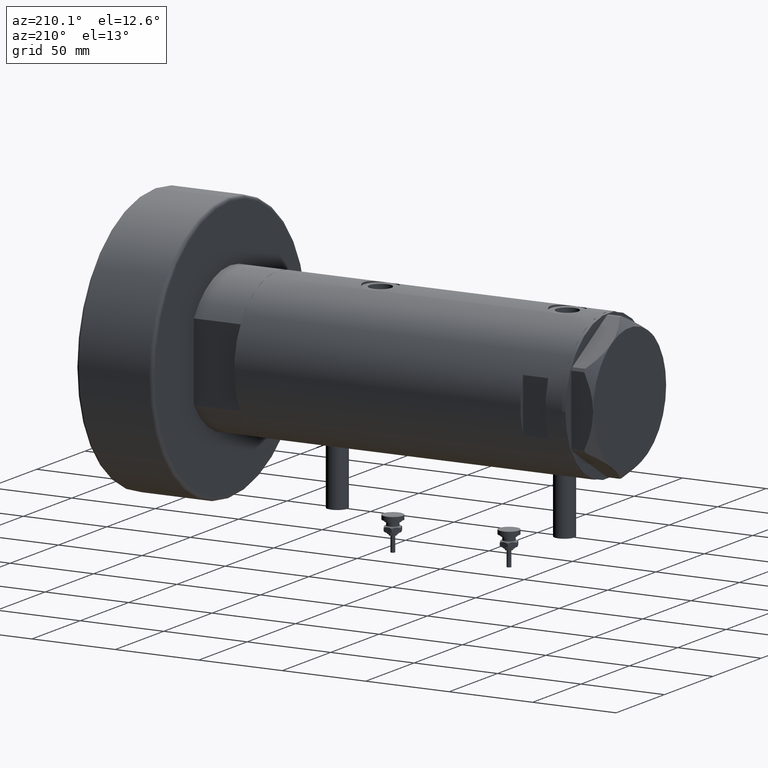
[diagram: clean part render]
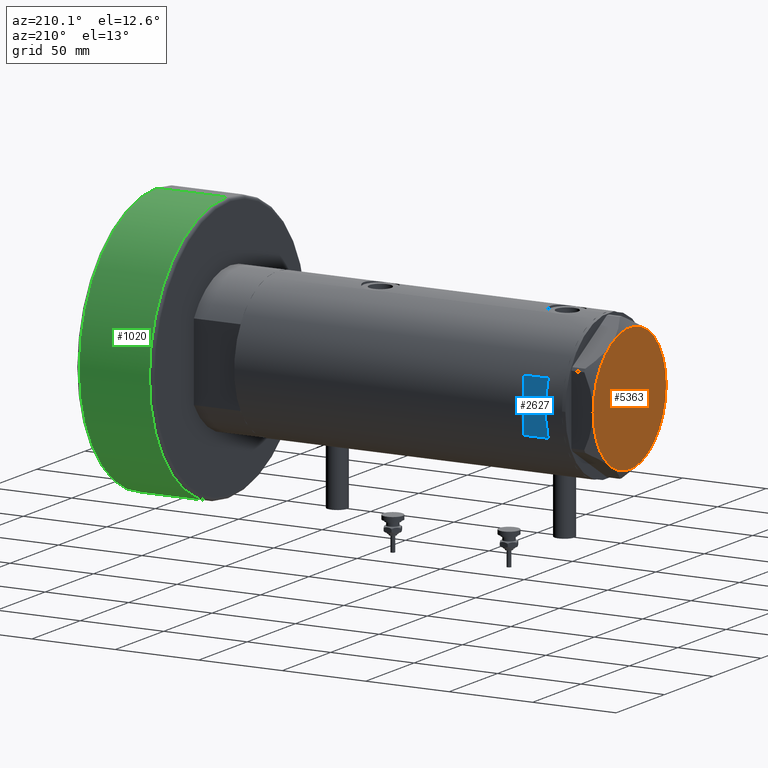
[diagram: same view with three faces highlighted in distinct colors, each labeled with its STEP entity id]
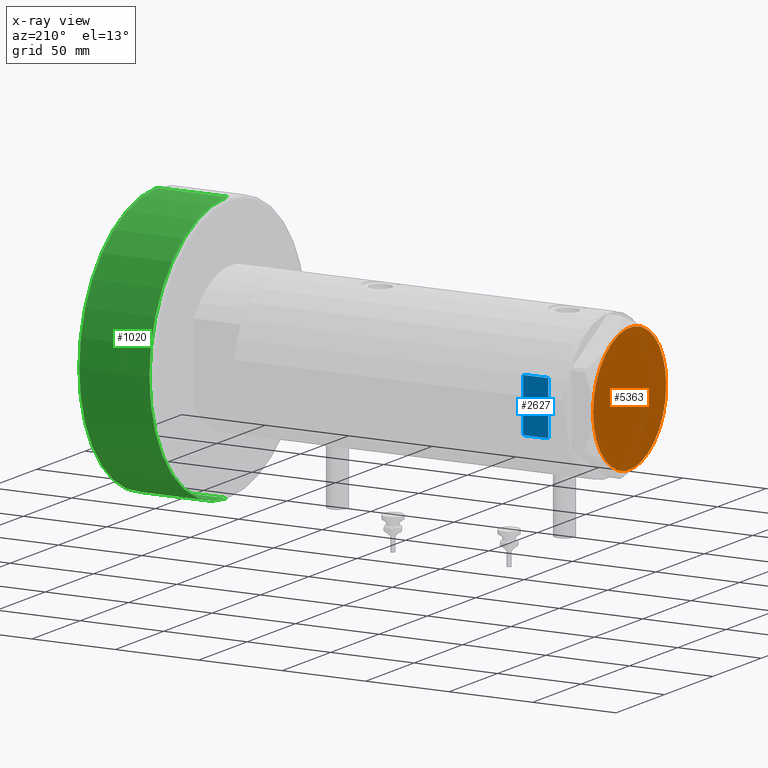
[diagram: x-ray of the same camera — body ghosted, the three highlighted faces saturated]
A machine part, auxiliary view with three faces highlighted in distinct colors.
The next image is the same camera in x-ray (body ghosted, the three faces saturated) — at least one of them is partly hidden behind the body in this view.
Their STEP definitions:

[orange] entity #5363 — the highlighted planar face has unit normal (-1, -0, 0).
#29 = CARTESIAN_POINT ( 'NONE',  ( -37.75000000000000000, -1.201851678989727067E-14, 13.00000000000000000 ) ) ;
#89 = CARTESIAN_POINT ( 'NONE',  ( -18.87499999999999645, -32.69245899286255508, 13.00000000000000000 ) ) ;
#195 = ORIENTED_EDGE ( 'NONE', *, *, #2497, .T. ) ;
#367 = DIRECTION ( 'NONE',  ( 0.000000000000000000, 0.000000000000000000, 1.000000000000000000 ) ) ;
#472 = DIRECTION ( 'NONE',  ( 1.000000000000000000, 0.000000000000000000, 0.000000000000000000 ) ) ;
#511 = CIRCLE ( 'NONE', #1346, 37.75000000000000000 ) ;
#567 = CARTESIAN_POINT ( 'NONE',  ( 0.000000000000000000, 0.000000000000000000, 13.00000000000000000 ) ) ;
#642 = CARTESIAN_POINT ( 'NONE',  ( 0.000000000000000000, 0.000000000000000000, 13.00000000000000000 ) ) ;
#648 = VERTEX_POINT ( 'NONE', #934 ) ;
#934 = CARTESIAN_POINT ( 'NONE',  ( -18.87499999999999645, 32.69245899286256218, 13.00000000000000000 ) ) ;
#958 = DIRECTION ( 'NONE',  ( 0.000000000000000000, 0.000000000000000000, 1.000000000000000000 ) ) ;
#979 = CARTESIAN_POINT ( 'NONE',  ( 0.000000000000000000, 0.000000000000000000, 13.00000000000000000 ) ) ;
#1004 = ORIENTED_EDGE ( 'NONE', *, *, #3896, .T. ) ;
#1027 = CIRCLE ( 'NONE', #4939, 37.75000000000000000 ) ;
#1046 = CARTESIAN_POINT ( 'NONE',  ( 0.000000000000000000, 0.000000000000000000, 13.00000000000000000 ) ) ;
#1097 = CARTESIAN_POINT ( 'NONE',  ( 0.000000000000000000, 0.000000000000000000, 13.00000000000000000 ) ) ;
#1195 = DIRECTION ( 'NONE',  ( 1.000000000000000000, 0.000000000000000000, 0.000000000000000000 ) ) ;
#1201 = VERTEX_POINT ( 'NONE', #29 ) ;
#1346 = AXIS2_PLACEMENT_3D ( 'NONE', #642, #3654, #4218 ) ;
#1358 = AXIS2_PLACEMENT_3D ( 'NONE', #2964, #3960, #5392 ) ;
#1396 = DIRECTION ( 'NONE',  ( 0.000000000000000000, 0.000000000000000000, 1.000000000000000000 ) ) ;
#1484 = CARTESIAN_POINT ( 'NONE',  ( 18.87499999999998579, -32.69245899286256218, 13.00000000000000000 ) ) ;
#1555 = AXIS2_PLACEMENT_3D ( 'NONE', #1046, #6120, #1195 ) ;
#1834 = DIRECTION ( 'NONE',  ( 0.000000000000000000, 0.000000000000000000, 1.000000000000000000 ) ) ;
#2497 = EDGE_CURVE ( 'NONE', #6016, #5858, #2800, .T. ) ;
#2581 = VERTEX_POINT ( 'NONE', #89 ) ;
#2608 = EDGE_CURVE ( 'NONE', #648, #1201, #1027, .T. ) ;
#2686 = AXIS2_PLACEMENT_3D ( 'NONE', #6239, #1834, #6142 ) ;
#2800 = CIRCLE ( 'NONE', #2686, 37.75000000000000000 ) ;
#2921 = FACE_OUTER_BOUND ( 'NONE', #5645, .T. ) ;
#2964 = CARTESIAN_POINT ( 'NONE',  ( 0.000000000000000000, 0.000000000000000000, 13.00000000000000000 ) ) ;
#3012 = EDGE_CURVE ( 'NONE', #1201, #2581, #4622, .T. ) ;
#3138 = CARTESIAN_POINT ( 'NONE',  ( 18.87500000000000000, 32.69245899286255508, 13.00000000000000000 ) ) ;
#3377 = DIRECTION ( 'NONE',  ( 1.000000000000000000, 0.000000000000000000, -0.000000000000000000 ) ) ;
#3620 = CIRCLE ( 'NONE', #1555, 37.75000000000000000 ) ;
#3654 = DIRECTION ( 'NONE',  ( 0.000000000000000000, 0.000000000000000000, 1.000000000000000000 ) ) ;
#3667 = ORIENTED_EDGE ( 'NONE', *, *, #3786, .T. ) ;
#3786 = EDGE_CURVE ( 'NONE', #2581, #4156, #511, .T. ) ;
#3817 = AXIS2_PLACEMENT_3D ( 'NONE', #567, #958, #472 ) ;
#3835 = CIRCLE ( 'NONE', #1358, 37.75000000000000000 ) ;
#3864 = CARTESIAN_POINT ( 'NONE',  ( 37.75000000000000711, 1.802777518484591547E-14, 13.00000000000000000 ) ) ;
#3896 = EDGE_CURVE ( 'NONE', #4156, #6016, #3620, .T. ) ;
#3960 = DIRECTION ( 'NONE',  ( 0.000000000000000000, 0.000000000000000000, 1.000000000000000000 ) ) ;
#4007 = DIRECTION ( 'NONE',  ( 1.000000000000000000, 0.000000000000000000, 0.000000000000000000 ) ) ;
#4156 = VERTEX_POINT ( 'NONE', #1484 ) ;
#4218 = DIRECTION ( 'NONE',  ( 1.000000000000000000, 0.000000000000000000, 0.000000000000000000 ) ) ;
#4494 = EDGE_CURVE ( 'NONE', #5858, #648, #3835, .T. ) ;
#4536 = PLANE ( 'NONE',  #5568 ) ;
#4622 = CIRCLE ( 'NONE', #3817, 37.75000000000000000 ) ;
#4939 = AXIS2_PLACEMENT_3D ( 'NONE', #979, #367, #4007 ) ;
#4944 = ORIENTED_EDGE ( 'NONE', *, *, #4494, .T. ) ;
#5363 = ADVANCED_FACE ( 'NONE', ( #2921 ), #4536, .T. ) ;
#5392 = DIRECTION ( 'NONE',  ( 1.000000000000000000, 0.000000000000000000, 0.000000000000000000 ) ) ;
#5465 = ORIENTED_EDGE ( 'NONE', *, *, #3012, .T. ) ;
#5568 = AXIS2_PLACEMENT_3D ( 'NONE', #1097, #1396, #3377 ) ;
#5645 = EDGE_LOOP ( 'NONE', ( #1004, #195, #4944, #5978, #5465, #3667 ) ) ;
#5858 = VERTEX_POINT ( 'NONE', #3138 ) ;
#5978 = ORIENTED_EDGE ( 'NONE', *, *, #2608, .T. ) ;
#6016 = VERTEX_POINT ( 'NONE', #3864 ) ;
#6120 = DIRECTION ( 'NONE',  ( 0.000000000000000000, 0.000000000000000000, 1.000000000000000000 ) ) ;
#6142 = DIRECTION ( 'NONE',  ( 1.000000000000000000, 0.000000000000000000, 0.000000000000000000 ) ) ;
#6239 = CARTESIAN_POINT ( 'NONE',  ( 0.000000000000000000, 0.000000000000000000, 13.00000000000000000 ) ) ;

[blue] entity #2627 — the highlighted planar face has unit normal (0, -1, -0).
#229 = VERTEX_POINT ( 'NONE', #5573 ) ;
#244 = LINE ( 'NONE', #3176, #1656 ) ;
#253 = VERTEX_POINT ( 'NONE', #4857 ) ;
#420 = VERTEX_POINT ( 'NONE', #5204 ) ;
#685 = EDGE_CURVE ( 'NONE', #229, #420, #2871, .T. ) ;
#1471 = EDGE_CURVE ( 'NONE', #2346, #253, #3215, .T. ) ;
#1562 = DIRECTION ( 'NONE',  ( 0.000000000000000000, -1.000000000000000000, -0.000000000000000000 ) ) ;
#1571 = VECTOR ( 'NONE', #6303, 1000.000000000000000 ) ;
#1656 = VECTOR ( 'NONE', #4694, 1000.000000000000000 ) ;
#1808 = LINE ( 'NONE', #2327, #1571 ) ;
#1853 = ORIENTED_EDGE ( 'NONE', *, *, #3767, .T. ) ;
#1862 = VECTOR ( 'NONE', #2602, 1000.000000000000000 ) ;
#1877 = ORIENTED_EDGE ( 'NONE', *, *, #1471, .T. ) ;
#2076 = CARTESIAN_POINT ( 'NONE',  ( 15.96871942267132027, 40.99999999999999289, -98.20000000000000284 ) ) ;
#2327 = CARTESIAN_POINT ( 'NONE',  ( -44.00000000000000000, 40.99999999999999289, 73.20000000000000284 ) ) ;
#2346 = VERTEX_POINT ( 'NONE', #5044 ) ;
#2602 = DIRECTION ( 'NONE',  ( -0.000000000000000000, -0.000000000000000000, -1.000000000000000000 ) ) ;
#2627 = ADVANCED_FACE ( 'NONE', ( #3916 ), #5874, .F. ) ;
#2871 = LINE ( 'NONE', #5300, #5536 ) ;
#3102 = ORIENTED_EDGE ( 'NONE', *, *, #685, .T. ) ;
#3176 = CARTESIAN_POINT ( 'NONE',  ( -44.00000000000000000, 40.99999999999999289, 88.20000000000000284 ) ) ;
#3215 = LINE ( 'NONE', #2076, #1862 ) ;
#3511 = CARTESIAN_POINT ( 'NONE',  ( -44.00000000000000000, 40.99999999999999289, 88.20000000000000284 ) ) ;
#3622 = AXIS2_PLACEMENT_3D ( 'NONE', #3511, #1562, #5453 ) ;
#3767 = EDGE_CURVE ( 'NONE', #420, #2346, #244, .T. ) ;
#3916 = FACE_OUTER_BOUND ( 'NONE', #4073, .T. ) ;
#4073 = EDGE_LOOP ( 'NONE', ( #1877, #5863, #3102, #1853 ) ) ;
#4245 = DIRECTION ( 'NONE',  ( 0.000000000000000000, 0.000000000000000000, 1.000000000000000000 ) ) ;
#4694 = DIRECTION ( 'NONE',  ( 1.000000000000000000, -0.000000000000000000, -0.000000000000000000 ) ) ;
#4857 = CARTESIAN_POINT ( 'NONE',  ( 15.96871942267132027, 40.99999999999999289, 73.20000000000000284 ) ) ;
#5044 = CARTESIAN_POINT ( 'NONE',  ( 15.96871942267132027, 40.99999999999999289, 88.20000000000000284 ) ) ;
#5204 = CARTESIAN_POINT ( 'NONE',  ( -15.96871942267132027, 40.99999999999999289, 88.20000000000000284 ) ) ;
#5300 = CARTESIAN_POINT ( 'NONE',  ( -15.96871942267132027, 40.99999999999999289, -98.20000000000000284 ) ) ;
#5453 = DIRECTION ( 'NONE',  ( 0.000000000000000000, 0.000000000000000000, -1.000000000000000000 ) ) ;
#5536 = VECTOR ( 'NONE', #4245, 1000.000000000000000 ) ;
#5573 = CARTESIAN_POINT ( 'NONE',  ( -15.96871942267132027, 40.99999999999999289, 73.20000000000000284 ) ) ;
#5583 = EDGE_CURVE ( 'NONE', #229, #253, #1808, .T. ) ;
#5863 = ORIENTED_EDGE ( 'NONE', *, *, #5583, .F. ) ;
#5874 = PLANE ( 'NONE',  #3622 ) ;
#6303 = DIRECTION ( 'NONE',  ( 1.000000000000000000, -0.000000000000000000, -0.000000000000000000 ) ) ;

[green] entity #1020 — the highlighted cylindrical surface (partial cylindrical patch) has radius 80 mm, axis along (-1, -0, 0).
#586 = VERTEX_POINT ( 'NONE', #5188 ) ;
#611 = EDGE_LOOP ( 'NONE', ( #2796, #1643, #1523, #5445 ) ) ;
#864 = CARTESIAN_POINT ( 'NONE',  ( 0.000000000000000000, 0.000000000000000000, 44.00000000000000000 ) ) ;
#1020 = ADVANCED_FACE ( 'NONE', ( #1151 ), #3638, .T. ) ;
#1029 = AXIS2_PLACEMENT_3D ( 'NONE', #1632, #4681, #3601 ) ;
#1078 = VERTEX_POINT ( 'NONE', #2711 ) ;
#1151 = FACE_OUTER_BOUND ( 'NONE', #611, .T. ) ;
#1348 = VECTOR ( 'NONE', #4443, 1000.000000000000000 ) ;
#1388 = DIRECTION ( 'NONE',  ( -0.000000000000000000, -0.000000000000000000, -1.000000000000000000 ) ) ;
#1523 = ORIENTED_EDGE ( 'NONE', *, *, #4092, .T. ) ;
#1632 = CARTESIAN_POINT ( 'NONE',  ( 0.000000000000000000, 0.000000000000000000, 46.00000000000000000 ) ) ;
#1643 = ORIENTED_EDGE ( 'NONE', *, *, #5703, .T. ) ;
#1911 = CARTESIAN_POINT ( 'NONE',  ( -80.00000000000000000, 0.000000000000000000, 46.00000000000000000 ) ) ;
#2249 = EDGE_CURVE ( 'NONE', #1078, #3187, #2879, .T. ) ;
#2427 = DIRECTION ( 'NONE',  ( 1.000000000000000000, 0.000000000000000000, 0.000000000000000000 ) ) ;
#2505 = VERTEX_POINT ( 'NONE', #4662 ) ;
#2711 = CARTESIAN_POINT ( 'NONE',  ( -80.00000000000000000, 0.000000000000000000, 44.00000000000000000 ) ) ;
#2796 = ORIENTED_EDGE ( 'NONE', *, *, #4054, .T. ) ;
#2879 = LINE ( 'NONE', #1911, #1348 ) ;
#3187 = VERTEX_POINT ( 'NONE', #3555 ) ;
#3555 = CARTESIAN_POINT ( 'NONE',  ( -80.00000000000000000, 0.000000000000000000, 2.000000000000001776 ) ) ;
#3601 = DIRECTION ( 'NONE',  ( -1.000000000000000000, 0.000000000000000000, 0.000000000000000000 ) ) ;
#3638 = CYLINDRICAL_SURFACE ( 'NONE', #1029, 80.00000000000000000 ) ;
#3746 = DIRECTION ( 'NONE',  ( 1.000000000000000000, 0.000000000000000000, 0.000000000000000000 ) ) ;
#4054 = EDGE_CURVE ( 'NONE', #1078, #586, #6387, .T. ) ;
#4092 = EDGE_CURVE ( 'NONE', #2505, #3187, #5248, .T. ) ;
#4225 = AXIS2_PLACEMENT_3D ( 'NONE', #864, #1388, #3746 ) ;
#4435 = CARTESIAN_POINT ( 'NONE',  ( 80.00000000000000000, 9.797174393178826052E-15, 46.00000000000000000 ) ) ;
#4443 = DIRECTION ( 'NONE',  ( -0.000000000000000000, -0.000000000000000000, -1.000000000000000000 ) ) ;
#4662 = CARTESIAN_POINT ( 'NONE',  ( 80.00000000000000000, 9.797174393178826052E-15, 2.000000000000001776 ) ) ;
#4681 = DIRECTION ( 'NONE',  ( -0.000000000000000000, -0.000000000000000000, -1.000000000000000000 ) ) ;
#4790 = DIRECTION ( 'NONE',  ( 0.000000000000000000, 0.000000000000000000, 1.000000000000000000 ) ) ;
#5002 = DIRECTION ( 'NONE',  ( -0.000000000000000000, -0.000000000000000000, -1.000000000000000000 ) ) ;
#5055 = VECTOR ( 'NONE', #5002, 1000.000000000000000 ) ;
#5188 = CARTESIAN_POINT ( 'NONE',  ( 80.00000000000000000, 9.797174393178826052E-15, 44.00000000000000000 ) ) ;
#5248 = CIRCLE ( 'NONE', #6281, 80.00000000000000000 ) ;
#5445 = ORIENTED_EDGE ( 'NONE', *, *, #2249, .F. ) ;
#5703 = EDGE_CURVE ( 'NONE', #586, #2505, #5883, .T. ) ;
#5883 = LINE ( 'NONE', #4435, #5055 ) ;
#6281 = AXIS2_PLACEMENT_3D ( 'NONE', #6307, #4790, #2427 ) ;
#6307 = CARTESIAN_POINT ( 'NONE',  ( 0.000000000000000000, 0.000000000000000000, 2.000000000000001776 ) ) ;
#6387 = CIRCLE ( 'NONE', #4225, 80.00000000000000000 ) ;